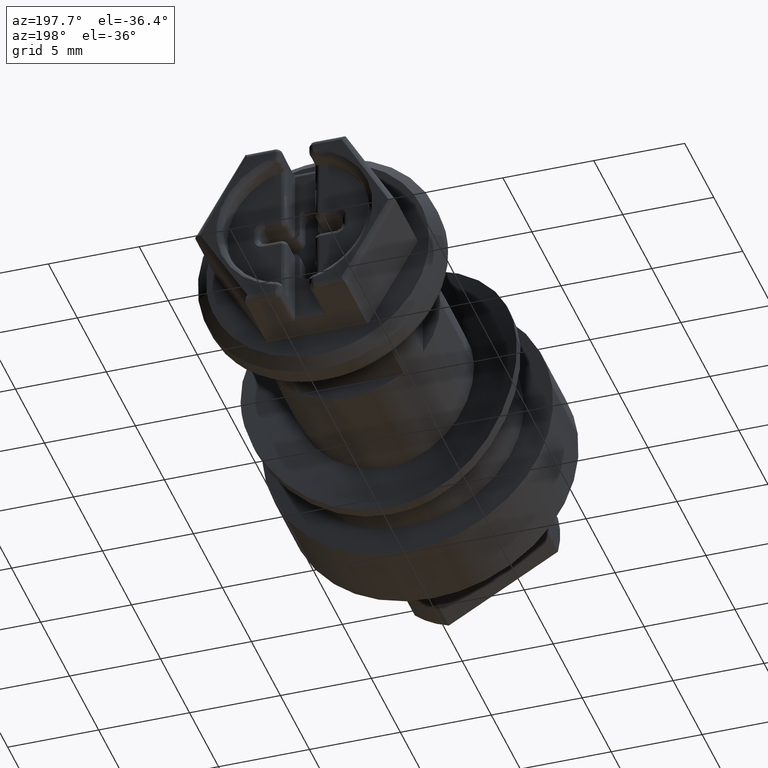
[diagram: clean part render]
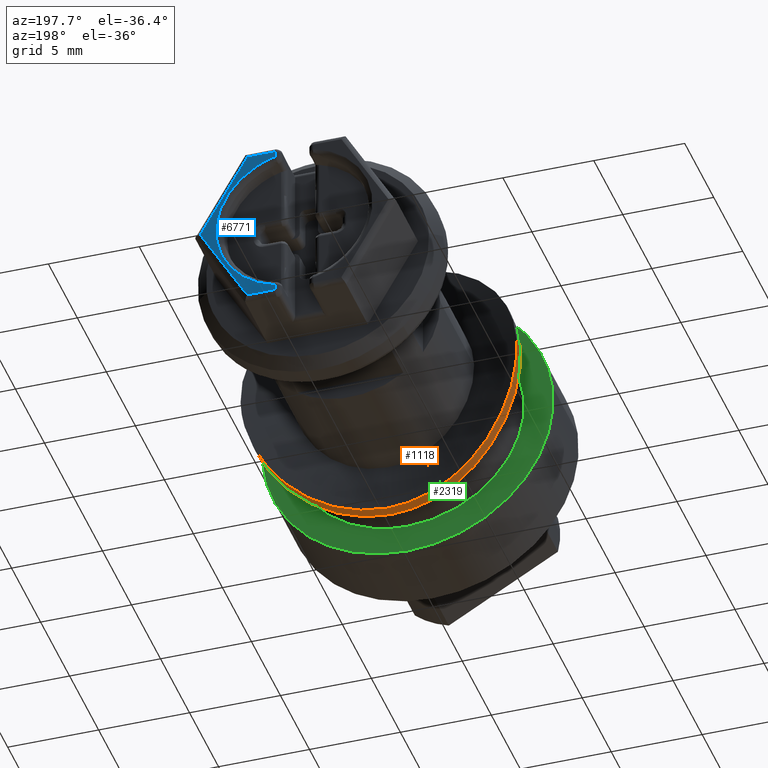
[diagram: same view with three faces highlighted in distinct colors, each labeled with its STEP entity id]
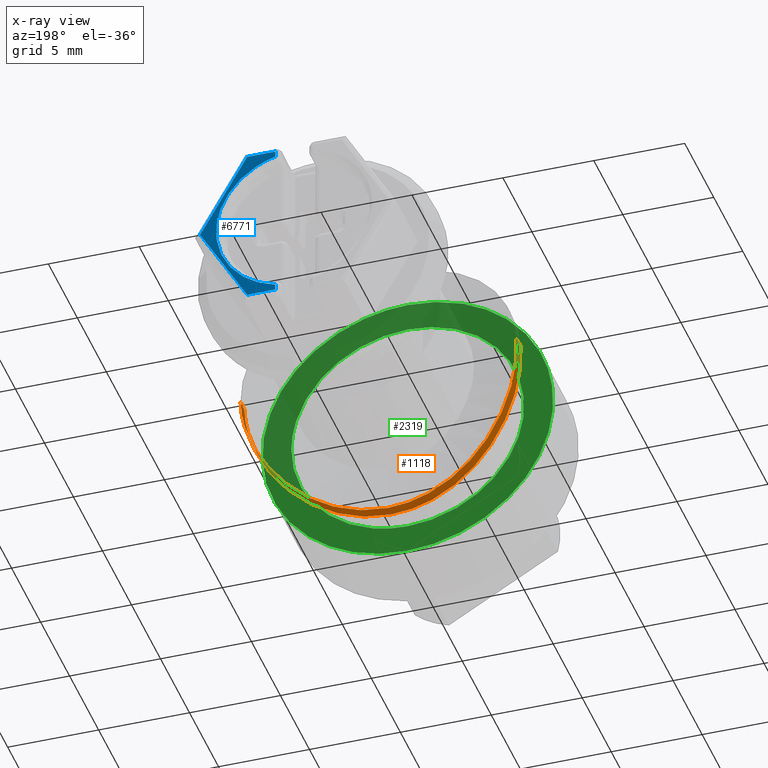
[diagram: x-ray of the same camera — body ghosted, the three highlighted faces saturated]
A machine part, auxiliary view with three faces highlighted in distinct colors.
The next image is the same camera in x-ray (body ghosted, the three faces saturated) — at least one of them is partly hidden behind the body in this view.
Their STEP definitions:

[orange] entity #1118 — the highlighted face is a freeform B-spline surface patch.
#720=CARTESIAN_POINT('',(7.598279726779529,8.745566137067797,-0.161991713038660));
#721=VERTEX_POINT('',#720);
#769=CARTESIAN_POINT('',(7.598279503509403,9.399239079622946,-0.161991708320209));
#770=VERTEX_POINT('',#769);
#771=CARTESIAN_POINT('',(7.598279503509403,9.399239079622946,-0.161991708320209));
#772=CARTESIAN_POINT('',(7.598279726779529,8.745566137067797,-0.161991713038660));
#773=QUASI_UNIFORM_CURVE('',1,(#771,#772),.UNSPECIFIED.,.F.,.U.);
#774=EDGE_CURVE('',#770,#721,#773,.T.);
#826=CARTESIAN_POINT('',(-7.576573139932421,9.389697137328517,0.596289238032107));
#827=VERTEX_POINT('',#826);
#873=CARTESIAN_POINT('',(-7.576573110358713,8.736370138112154,0.596288425991713));
#874=VERTEX_POINT('',#873);
#875=CARTESIAN_POINT('',(-7.576573139932421,9.389697137328517,0.596289238032107));
#876=CARTESIAN_POINT('',(-7.576573110358713,8.736370138112154,0.596288425991713));
#877=QUASI_UNIFORM_CURVE('',1,(#875,#876),.UNSPECIFIED.,.F.,.U.);
#878=EDGE_CURVE('',#827,#874,#877,.T.);
#924=CARTESIAN_POINT('',(-7.576571736371769,9.455000009023804,0.596289127531621));
#925=CARTESIAN_POINT('',(-8.172860863903392,9.455000009023804,-6.980282608840150));
#926=CARTESIAN_POINT('',(-0.596289127531621,9.455000009023804,-7.576571736371769));
#927=CARTESIAN_POINT('',(6.980282608840150,9.455000009023804,-8.172860863903392));
#928=CARTESIAN_POINT('',(7.576571736371769,9.455000009023804,-0.596289127531621));
#929=CARTESIAN_POINT('',(7.593637275018588,9.455000009023806,-0.379450899552038));
#930=CARTESIAN_POINT('',(7.598273404417761,9.455000009023806,-0.161991579156646));
#931=CARTESIAN_POINT('',(-7.576571736371769,7.143626074876239,0.596289127531621));
#932=CARTESIAN_POINT('',(-8.172860863903392,7.143626074876239,-6.980282608840150));
#933=CARTESIAN_POINT('',(-0.596289127531621,7.143626074876239,-7.576571736371769));
#934=CARTESIAN_POINT('',(6.980282608840150,7.143626074876239,-8.172860863903392));
#935=CARTESIAN_POINT('',(7.576571736371769,7.143626074876239,-0.596289127531621));
#936=CARTESIAN_POINT('',(7.593637275018588,7.143626074876239,-0.379450899552038));
#937=CARTESIAN_POINT('',(7.598273404417761,7.143626074876239,-0.161991579156646));
#945=(BOUNDED_SURFACE()B_SPLINE_SURFACE(2,1,((#924,#931),(#925,#932),(#926,#933),(#927,#934),(#928,#935),(#929,#936),(#930,#937)),.UNSPECIFIED.,.F.,.F.,.U.)B_SPLINE_SURFACE_WITH_KNOTS((3,2,2,3),(2,2),(0.0,12.592092296142081,25.184184592284169,25.687868284129848),(0.0,2.311373934147568),.UNSPECIFIED.)GEOMETRIC_REPRESENTATION_ITEM()RATIONAL_B_SPLINE_SURFACE(((1.0,1.0),(0.707106781186548,0.707106781186548),(1.0,1.0),(0.707106781186548,0.707106781186548),(1.0,1.0),(0.988284271247462,0.988284271247462),(0.977505800795127,0.977505800795127)))REPRESENTATION_ITEM('')SURFACE());
#946=CARTESIAN_POINT('',(-5.421011E-016,7.200001048879838,-7.599999999999999));
#947=VERTEX_POINT('',#946);
#948=CARTESIAN_POINT('',(-5.421011E-016,7.200001048879838,-7.599999999999999));
#949=CARTESIAN_POINT('',(0.507562792980920,7.200001053618528,-7.599999995527434));
#950=CARTESIAN_POINT('',(1.005690644128106,7.219822311903142,-7.549672592199582));
#951=CARTESIAN_POINT('',(1.739523220442844,7.276391505936621,-7.402452203675661));
#952=CARTESIAN_POINT('',(1.981891841460653,7.299729406984786,-7.341330777355925));
#953=CARTESIAN_POINT('',(2.342043325224849,7.341144747626165,-7.231223036701850));
#954=CARTESIAN_POINT('',(2.461808327251731,7.356060169779084,-7.191329173148732));
#955=CARTESIAN_POINT('',(2.697692414043292,7.387625556726670,-7.106206429619004));
#956=CARTESIAN_POINT('',(2.814045911413158,7.404296939927348,-7.060921858213860));
#957=CARTESIAN_POINT('',(3.388092279897297,7.491736148102098,-6.821180389647009));
#958=CARTESIAN_POINT('',(3.822845392854107,7.574732831114155,-6.587188214052991));
#959=CARTESIAN_POINT('',(4.336872753782051,7.689380958503142,-6.242342428820511));
#960=CARTESIAN_POINT('',(4.438193724772064,7.712856100743386,-6.170729291462400));
#961=CARTESIAN_POINT('',(4.637840590938308,7.760759262960617,-6.022117219146625));
#962=CARTESIAN_POINT('',(4.735510937682762,7.785030500420239,-5.945601440246731));
#963=CARTESIAN_POINT('',(5.021663789932949,7.858403015368845,-5.709985015490833));
#964=CARTESIAN_POINT('',(5.203564715255157,7.908124948832113,-5.544639955249442));
#965=CARTESIAN_POINT('',(5.550222643672269,8.007843715546004,-5.197609179019625));
#966=CARTESIAN_POINT('',(5.714978748159497,8.057843231072695,-5.015923347858263));
#967=CARTESIAN_POINT('',(5.949276501155950,8.132029042206243,-4.730876403366525));
#968=CARTESIAN_POINT('',(6.025232083510953,8.156621621361655,-4.633770177490973));
#969=CARTESIAN_POINT('',(6.172806580248619,8.205355187224027,-4.435279440745481));
#970=CARTESIAN_POINT('',(6.244570238035245,8.229546123985829,-4.333676543424968));
#971=CARTESIAN_POINT('',(6.590629346155966,8.348314411315702,-3.817187202853141));
#972=CARTESIAN_POINT('',(6.823590502628749,8.435098096080759,-3.382712346516282));
#973=CARTESIAN_POINT('',(7.109032228365530,8.545457089138010,-2.698636089818739));
#974=CARTESIAN_POINT('',(7.193427320255315,8.578938965084010,-2.465177652032475));
#975=CARTESIAN_POINT('',(7.303326756933714,8.623203850514001,-2.106414530875870));
#976=CARTESIAN_POINT('',(7.337218144482226,8.636983971791933,-1.985210441508929));
#977=CARTESIAN_POINT('',(7.399056945376273,8.662296681109464,-1.740627588183383));
#978=CARTESIAN_POINT('',(7.426817932365287,8.673752190321043,-1.618025304048101));
#979=CARTESIAN_POINT('',(7.539854427613093,8.720634665317258,-1.054663234894558));
#980=CARTESIAN_POINT('',(7.588786327237635,8.741506021634478,-0.610300375813690));
#981=CARTESIAN_POINT('',(7.598279726779529,8.745566137067797,-0.161991713038660));
#982=B_SPLINE_CURVE_WITH_KNOTS('',3,(#948,#949,#950,#951,#952,#953,#954,#955,#956,#957,#958,#959,#960,#961,#962,#963,#964,#965,#966,#967,#968,#969,#970,#971,#972,#973,#974,#975,#976,#977,#978,#979,#980,#981),.UNSPECIFIED.,.F.,.U.,(4,2,2,2,2,2,2,2,2,2,2,2,2,2,2,2,4),(0.0,0.031250000000000,0.046875000000000,0.054687500000000,0.062500000000000,0.093750000000000,0.101562500000001,0.109375000000001,0.125000000000001,0.140625000000001,0.148437500000001,0.156250000000001,0.187500000000001,0.203125000000001,0.210937500000001,0.218750000000001,0.246746620324587),.UNSPECIFIED.);
#983=EDGE_CURVE('',#947,#721,#982,.T.);
#984=ORIENTED_EDGE('',*,*,#983,.F.);
#985=CARTESIAN_POINT('',(-7.576573110358713,8.736370138112154,0.596288425991713));
#986=CARTESIAN_POINT('',(-7.592349828783686,8.743040479106639,0.395890636713040));
#987=CARTESIAN_POINT('',(-7.600084680181558,8.746333871529293,0.196030823131867));
#988=CARTESIAN_POINT('',(-7.599780214121746,8.746204705830763,-0.504344960382441));
#989=CARTESIAN_POINT('',(-7.550503934469561,8.725045606477613,-1.002092325823915));
#990=CARTESIAN_POINT('',(-7.426377432388475,8.673565983065634,-1.620122543389873));
#991=CARTESIAN_POINT('',(-7.398340941524646,8.661998385054906,-1.743658198519812));
#992=CARTESIAN_POINT('',(-7.336615654143218,8.636734885761101,-1.987426455279516));
#993=CARTESIAN_POINT('',(-7.302864556523808,8.623012985146540,-2.108016234497288));
#994=CARTESIAN_POINT('',(-7.193128149422102,8.578816811837815,-2.466010006899877));
#995=CARTESIAN_POINT('',(-7.108681950672738,8.545313764472624,-2.699647385118209));
#996=CARTESIAN_POINT('',(-6.917618671844841,8.471452992747182,-3.157215260304567));
#997=CARTESIAN_POINT('',(-6.811001481878515,8.431093819942131,-3.381145495872916));
#998=CARTESIAN_POINT('',(-6.634215820101759,8.366301135362871,-3.709803804388992));
#999=CARTESIAN_POINT('',(-6.572299480385723,8.343933848153771,-3.818424659792699));
#1000=CARTESIAN_POINT('',(-6.443714194321151,8.298277359493186,-4.031629364180208));
#1001=CARTESIAN_POINT('',(-6.377083172071719,8.274999574687396,-4.136190804495223));
#1002=CARTESIAN_POINT('',(-6.032443212758188,8.156836455141011,-4.649085630768418));
#1003=CARTESIAN_POINT('',(-5.720353497577806,8.056671730096525,-5.028000743751072));
#1004=CARTESIAN_POINT('',(-5.284217606008151,7.931351880195172,-5.463720478980001));
#1005=CARTESIAN_POINT('',(-5.194665887570742,7.906280314477384,-5.548948502140038));
#1006=CARTESIAN_POINT('',(-5.010803137212752,7.856292780515890,-5.715525835182908));
#1007=CARTESIAN_POINT('',(-4.916497474359396,7.831383867423331,-5.796841679059109));
#1008=CARTESIAN_POINT('',(-4.629387728958593,7.757930174035581,-6.032417995999167));
#1009=CARTESIAN_POINT('',(-4.431435157506474,7.710391881171822,-6.179231925628193));
#1010=CARTESIAN_POINT('',(-4.022512043231661,7.619346682466111,-6.452900307905727));
#1011=CARTESIAN_POINT('',(-3.811541427520021,7.575837277676405,-6.579753801682360));
#1012=CARTESIAN_POINT('',(-3.376260264017674,7.493998489552925,-6.813360067211262));
#1013=CARTESIAN_POINT('',(-3.151951744292813,7.455666439760442,-6.920115263630779));
#1014=CARTESIAN_POINT('',(-2.804927100745486,7.402959881093985,-7.064565243677973));
#1015=CARTESIAN_POINT('',(-2.687401051148230,7.386187257869129,-7.110101719450625));
#1016=CARTESIAN_POINT('',(-2.451772212231178,7.354782543123200,-7.194753928490231));
#1017=CARTESIAN_POINT('',(-2.333304294764105,7.340092144659129,-7.234030318062965));
#1018=CARTESIAN_POINT('',(-1.975962053964091,7.299146152866129,-7.342859812329128));
#1019=CARTESIAN_POINT('',(-1.735153466143624,7.276014884376396,-7.403435100718915));
#1020=CARTESIAN_POINT('',(-1.248387093961978,7.238570820428883,-7.500875860783884));
#1021=CARTESIAN_POINT('',(-1.002429443227518,7.224256945863895,-7.537741625464584));
#1022=CARTESIAN_POINT('',(-0.505239197696104,7.204972665377206,-7.587301693772382));
#1023=CARTESIAN_POINT('',(-0.253781482330762,7.200001012002802,-7.600000002704404));
#1024=CARTESIAN_POINT('',(-5.421011E-016,7.200001048879838,-7.599999999999999));
#1025=B_SPLINE_CURVE_WITH_KNOTS('',3,(#985,#986,#987,#988,#989,#990,#991,#992,#993,#994,#995,#996,#997,#998,#999,#1000,#1001,#1002,#1003,#1004,#1005,#1006,#1007,#1008,#1009,#1010,#1011,#1012,#1013,#1014,#1015,#1016,#1017,#1018,#1019,#1020,#1021,#1022,#1023,#1024),.UNSPECIFIED.,.F.,.U.,(4,2,2,2,2,2,2,2,2,2,2,2,2,2,2,2,2,2,2,4),(0.737567398715673,0.750000000000000,0.781250000000000,0.789062500000000,0.796875000000000,0.812500000000000,0.828125000000000,0.835937500000000,0.843750000000000,0.875000000000000,0.882812500000000,0.890625000000000,0.906250000000000,0.921875000000000,0.937500000000000,0.945312500000000,0.953125000000000,0.968750000000000,0.984375000000000,1.0),.UNSPECIFIED.);
#1026=EDGE_CURVE('',#874,#947,#1025,.T.);
#1027=ORIENTED_EDGE('',*,*,#1026,.F.);
#1028=ORIENTED_EDGE('',*,*,#878,.F.);
#1029=CARTESIAN_POINT('',(-6.776264E-017,7.800001503590850,-7.600000000000000));
#1030=VERTEX_POINT('',#1029);
#1031=CARTESIAN_POINT('',(-7.576573139932421,9.389697137328517,0.596289238032107));
#1032=CARTESIAN_POINT('',(-7.592119310458546,9.396518741662765,0.398819643456612));
#1033=CARTESIAN_POINT('',(-7.599861117055821,9.399939779562347,0.201809030428016));
#1034=CARTESIAN_POINT('',(-7.600342803108004,9.400151972645981,-0.495815490820930));
#1035=CARTESIAN_POINT('',(-7.551624363765730,9.378432480183751,-0.993981637801050));
#1036=CARTESIAN_POINT('',(-7.440295524033910,9.330512373999721,-1.551118994942667));
#1037=CARTESIAN_POINT('',(-7.427113086932581,9.324853891340645,-1.613058217769481));
#1038=CARTESIAN_POINT('',(-7.399300797083928,9.312957456419408,-1.736177877469232));
#1039=CARTESIAN_POINT('',(-7.355384056603687,9.294232014199290,-1.919884144065469));
#1040=CARTESIAN_POINT('',(-7.304965443444654,9.272960338546767,-2.100720941130444));
#1041=CARTESIAN_POINT('',(-7.195635322515200,9.227269452935611,-2.458673672495814));
#1042=CARTESIAN_POINT('',(-7.111447050791763,9.192613849462981,-2.692356454993793));
#1043=CARTESIAN_POINT('',(-6.920838514038190,9.116175437115114,-3.150152054320276));
#1044=CARTESIAN_POINT('',(-6.814418342624790,9.074391181568181,-3.374264685460184));
#1045=CARTESIAN_POINT('',(-6.637851824863367,9.007286148498062,-3.703296427316448));
#1046=CARTESIAN_POINT('',(-6.576025831247052,8.984128670766630,-3.811996176989311));
#1047=CARTESIAN_POINT('',(-6.447885575333982,8.936956881210543,-4.024947557019867));
#1048=CARTESIAN_POINT('',(-6.381472042826778,8.912903376332592,-4.129410864015290));
#1049=CARTESIAN_POINT('',(-6.037879365729407,8.790784606537718,-4.641948319761884));
#1050=CARTESIAN_POINT('',(-5.726503624627752,8.687209117087958,-5.021001802756355));
#1051=CARTESIAN_POINT('',(-5.290836083279356,8.557521549677437,-5.457311988154266));
#1052=CARTESIAN_POINT('',(-5.201356461430533,8.531571235737568,-5.542679069843524));
#1053=CARTESIAN_POINT('',(-5.017585983620196,8.479821135556449,-5.709573691935316));
#1054=CARTESIAN_POINT('',(-4.923702890365229,8.454139291250385,-5.790717229561376));
#1055=CARTESIAN_POINT('',(-4.637493293476772,8.378298537465540,-6.026167702585739));
#1056=CARTESIAN_POINT('',(-4.440051211034342,8.329185132831361,-6.173034208631707));
#1057=CARTESIAN_POINT('',(-4.031917569284617,8.235061738004209,-6.447018510703364));
#1058=CARTESIAN_POINT('',(-3.821226175871343,8.190049123717621,-6.574135666218236));
#1059=CARTESIAN_POINT('',(-3.386211093799002,8.105320744530228,-6.808421578485626));
#1060=CARTESIAN_POINT('',(-3.161889767617476,8.065602121927682,-6.915593122934520));
#1061=CARTESIAN_POINT('',(-2.872454999582728,8.020054092734695,-7.036542969495076));
#1062=CARTESIAN_POINT('',(-2.814105141895055,8.011149405011956,-7.060081059794281));
#1063=CARTESIAN_POINT('',(-2.697203948013235,7.993874202559475,-7.105562842832193));
#1064=CARTESIAN_POINT('',(-2.521286356469623,7.968720276806704,-7.171506096391590));
#1065=CARTESIAN_POINT('',(-2.343682255257136,7.945882887156781,-7.230676248518392));
#1066=CARTESIAN_POINT('',(-1.986239668684314,7.903403389522421,-7.340092426618209));
#1067=CARTESIAN_POINT('',(-1.744970369519532,7.879342835707678,-7.401159693226423));
#1068=CARTESIAN_POINT('',(-1.256438083270398,7.840325510106038,-7.499563318581223));
#1069=CARTESIAN_POINT('',(-1.009175517905832,7.825367397699423,-7.536901073768363));
#1070=CARTESIAN_POINT('',(-0.633630117908440,7.810237460797827,-7.574585212656873));
#1071=CARTESIAN_POINT('',(-0.507671749070470,7.806412580932194,-7.584087097845815));
#1072=CARTESIAN_POINT('',(-0.254158527809325,7.801288620256175,-7.596809275098681));
#1073=CARTESIAN_POINT('',(-0.126952695503242,7.800001502367876,-7.600000000836154));
#1074=CARTESIAN_POINT('',(-6.776264E-017,7.800001503590850,-7.600000000000000));
#1075=B_SPLINE_CURVE_WITH_KNOTS('',3,(#1031,#1032,#1033,#1034,#1035,#1036,#1037,#1038,#1039,#1040,#1041,#1042,#1043,#1044,#1045,#1046,#1047,#1048,#1049,#1050,#1051,#1052,#1053,#1054,#1055,#1056,#1057,#1058,#1059,#1060,#1061,#1062,#1063,#1064,#1065,#1066,#1067,#1068,#1069,#1070,#1071,#1072,#1073,#1074),.UNSPECIFIED.,.F.,.U.,(4,2,2,2,1,2,2,2,2,2,2,2,2,2,2,2,2,1,2,2,2,2,4),(0.737740901436730,0.749999999999999,0.781249999999999,0.785156249999999,0.789062499999999,0.796874999999999,0.812500000000000,0.828125000000000,0.835937500000000,0.843750000000000,0.875000000000000,0.882812500000000,0.890625000000000,0.906250000000000,0.921875000000000,0.937500000000000,0.941406250000000,0.945312500000000,0.953125000000000,0.968750000000000,0.984375000000000,0.992187500000000,1.0),.UNSPECIFIED.);
#1076=EDGE_CURVE('',#827,#1030,#1075,.T.);
#1077=ORIENTED_EDGE('',*,*,#1076,.T.);
#1078=CARTESIAN_POINT('',(-6.776264E-017,7.800001503590850,-7.600000000000000));
#1079=CARTESIAN_POINT('',(0.507810620948846,7.800001508482759,-7.599999995689236));
#1080=CARTESIAN_POINT('',(1.006123133269097,7.820471488057640,-7.549624442058501));
#1081=CARTESIAN_POINT('',(1.740155283926567,7.878890606377147,-7.402306067268920));
#1082=CARTESIAN_POINT('',(1.982577465553473,7.902991970946297,-7.341147418181427));
#1083=CARTESIAN_POINT('',(2.342791701835321,7.945765490656896,-7.230981070568157));
#1084=CARTESIAN_POINT('',(2.462557121494208,7.961168501416162,-7.191072387928404));
#1085=CARTESIAN_POINT('',(2.698387046704004,7.993759295917333,-7.105942282566410));
#1086=CARTESIAN_POINT('',(2.814709507575834,8.010972400139803,-7.060656804266078));
#1087=CARTESIAN_POINT('',(3.388585000240859,8.101255562680725,-6.820926216815478));
#1088=CARTESIAN_POINT('',(3.823151661587732,8.186959260019144,-6.586993787630316));
#1089=CARTESIAN_POINT('',(4.336941773925829,8.305396131455611,-6.242293434883288));
#1090=CARTESIAN_POINT('',(4.438215065577309,8.329649320001487,-6.170712813096455));
#1091=CARTESIAN_POINT('',(4.637767531090927,8.379145798093822,-6.022172334242450));
#1092=CARTESIAN_POINT('',(4.735275441447720,8.404197275062920,-5.945786364663853));
#1093=CARTESIAN_POINT('',(5.021139126780850,8.479984462442102,-5.710435184658559));
#1094=CARTESIAN_POINT('',(5.202876119683662,8.531358702094122,-5.545276223648632));
#1095=CARTESIAN_POINT('',(5.549267593685133,8.634431485060652,-5.198618304388755));
#1096=CARTESIAN_POINT('',(5.713921206284263,8.686132827989738,-5.017119317412676));
#1097=CARTESIAN_POINT('',(5.948113569901523,8.762878467315462,-4.732336294653975));
#1098=CARTESIAN_POINT('',(6.024042072438964,8.788325457705907,-4.635315274145574));
#1099=CARTESIAN_POINT('',(6.171578723713140,8.838764365477500,-4.436985893497762));
#1100=CARTESIAN_POINT('',(6.243352752533895,8.863815660849252,-4.335426119800658));
#1101=CARTESIAN_POINT('',(6.589136681143585,8.986708062676291,-3.819683019907687));
#1102=CARTESIAN_POINT('',(6.822096903140161,9.076625392091767,-3.385695293947844));
#1103=CARTESIAN_POINT('',(7.107742474749058,9.191107529592427,-2.702022771152220));
#1104=CARTESIAN_POINT('',(7.192239682979657,9.225866749537655,-2.468644004625449));
#1105=CARTESIAN_POINT('',(7.302323550380189,9.271851223955965,-2.109891269380040));
#1106=CARTESIAN_POINT('',(7.336294295293209,9.286177844106806,-1.988620871551227));
#1107=CARTESIAN_POINT('',(7.398234941262038,9.312478499301722,-1.744117050243839));
#1108=CARTESIAN_POINT('',(7.426050510878293,9.324386101143311,-1.621544144465452));
#1109=CARTESIAN_POINT('',(7.539567462859712,9.373233440472747,-1.057177023910253));
#1110=CARTESIAN_POINT('',(7.588757003695524,9.395012330471971,-0.611638554059881));
#1111=CARTESIAN_POINT('',(7.598279503509403,9.399239079622946,-0.161991708320209));
#1112=B_SPLINE_CURVE_WITH_KNOTS('',3,(#1078,#1079,#1080,#1081,#1082,#1083,#1084,#1085,#1086,#1087,#1088,#1089,#1090,#1091,#1092,#1093,#1094,#1095,#1096,#1097,#1098,#1099,#1100,#1101,#1102,#1103,#1104,#1105,#1106,#1107,#1108,#1109,#1110,#1111),.UNSPECIFIED.,.F.,.U.,(4,2,2,2,2,2,2,2,2,2,2,2,2,2,2,2,4),(0.0,0.031250000000000,0.046875000000000,0.054687500000000,0.062500000000000,0.093750000000000,0.101562500000000,0.109375000000000,0.125000000000000,0.140625000000000,0.148437500000000,0.156250000000000,0.187500000000000,0.203125000000000,0.210937500000000,0.218750000000000,0.246816080053966),.UNSPECIFIED.);
#1113=EDGE_CURVE('',#1030,#770,#1112,.T.);
#1114=ORIENTED_EDGE('',*,*,#1113,.T.);
#1115=ORIENTED_EDGE('',*,*,#774,.T.);
#1116=EDGE_LOOP('',(#984,#1027,#1028,#1077,#1114,#1115));
#1117=FACE_OUTER_BOUND('',#1116,.T.);
#1118=ADVANCED_FACE('',(#1117),#945,.T.);

[blue] entity #6771 — the highlighted face is a freeform B-spline surface patch.
#3196=CARTESIAN_POINT('',(1.050000035623202,23.950001328298899,4.169832121943434));
#3197=VERTEX_POINT('',#3196);
#3293=CARTESIAN_POINT('',(1.050000035623202,23.950001328298899,4.484790583174300));
#3294=VERTEX_POINT('',#3293);
#3308=CARTESIAN_POINT('',(1.050000035623202,23.950001328298899,4.169832121943434));
#3309=CARTESIAN_POINT('',(1.050000035623202,23.950001328298899,4.484790583174300));
#3310=QUASI_UNIFORM_CURVE('',1,(#3308,#3309),.UNSPECIFIED.,.F.,.U.);
#3311=EDGE_CURVE('',#3197,#3294,#3310,.T.);
#3345=CARTESIAN_POINT('',(1.050000035623202,23.950001328298899,-4.169832121943434));
#3346=VERTEX_POINT('',#3345);
#3378=CARTESIAN_POINT('',(1.050000035623202,23.950001328298899,-4.169832121943433));
#3379=CARTESIAN_POINT('',(4.300000000000000,23.950001328298896,-3.351453832704158));
#3380=CARTESIAN_POINT('',(4.300000000000000,23.950001328298899,0.0));
#3381=CARTESIAN_POINT('',(4.300000000000000,23.950001328298896,3.351453832704160));
#3382=CARTESIAN_POINT('',(1.050000035623201,23.950001328298899,4.169832121943434));
#3390=(BOUNDED_CURVE()B_SPLINE_CURVE(2,(#3378,#3379,#3380,#3381,#3382),.UNSPECIFIED.,.F.,.U.)B_SPLINE_CURVE_WITH_KNOTS((3,2,3),(0.0,0.500000000000000,1.0),.UNSPECIFIED.)CURVE()GEOMETRIC_REPRESENTATION_ITEM()RATIONAL_B_SPLINE_CURVE((1.0,0.788728741328758,1.0,0.788728741328758,1.0))REPRESENTATION_ITEM(''));
#3391=EDGE_CURVE('',#3346,#3197,#3390,.T.);
#3680=CARTESIAN_POINT('',(2.589295050454995,23.950001328298899,4.484790583174300));
#3681=VERTEX_POINT('',#3680);
#3695=CARTESIAN_POINT('',(1.050000035623202,23.950001328298899,4.484790583174300));
#3696=CARTESIAN_POINT('',(2.589295050454995,23.950001328298899,4.484790583174300));
#3697=QUASI_UNIFORM_CURVE('',1,(#3695,#3696),.UNSPECIFIED.,.F.,.U.);
#3698=EDGE_CURVE('',#3294,#3681,#3697,.T.);
#3723=CARTESIAN_POINT('',(1.050000035623202,23.950001328298899,-4.484790583174330));
#3724=VERTEX_POINT('',#3723);
#3746=CARTESIAN_POINT('',(1.050000035623202,23.950001328298899,-4.484790583174330));
#3747=CARTESIAN_POINT('',(1.050000035623202,23.950001328298899,-4.169832121943434));
#3748=QUASI_UNIFORM_CURVE('',1,(#3746,#3747),.UNSPECIFIED.,.F.,.U.);
#3749=EDGE_CURVE('',#3724,#3346,#3748,.T.);
#3918=CARTESIAN_POINT('',(5.178590100910000,23.950001328298899,-2.195566E-013));
#3919=VERTEX_POINT('',#3918);
#3933=CARTESIAN_POINT('',(2.589295050454995,23.950001328298899,4.484790583174300));
#3934=CARTESIAN_POINT('',(5.178590100910000,23.950001328298899,-2.195566E-013));
#3935=QUASI_UNIFORM_CURVE('',1,(#3933,#3934),.UNSPECIFIED.,.F.,.U.);
#3936=EDGE_CURVE('',#3681,#3919,#3935,.T.);
#4149=CARTESIAN_POINT('',(2.589295050455195,23.950001328298899,-4.484790583174330));
#4150=VERTEX_POINT('',#4149);
#4164=CARTESIAN_POINT('',(5.178590100910000,23.950001328298899,-2.195566E-013));
#4165=CARTESIAN_POINT('',(2.589295050455195,23.950001328298899,-4.484790583174330));
#4166=QUASI_UNIFORM_CURVE('',1,(#4164,#4165),.UNSPECIFIED.,.F.,.U.);
#4167=EDGE_CURVE('',#3919,#4150,#4166,.T.);
#4193=CARTESIAN_POINT('',(2.589295050455195,23.950001328298899,-4.484790583174330));
#4194=CARTESIAN_POINT('',(1.050000035623202,23.950001328298899,-4.484790583174330));
#4195=QUASI_UNIFORM_CURVE('',1,(#4193,#4194),.UNSPECIFIED.,.F.,.U.);
#4196=EDGE_CURVE('',#4150,#3724,#4195,.T.);
#6757=CARTESIAN_POINT('',(0.843777008620385,23.950001328298899,-4.932821397648686));
#6758=CARTESIAN_POINT('',(5.384813275562704,23.950001328298899,-4.932821397648686));
#6759=CARTESIAN_POINT('',(0.843777008620385,23.950001328298899,4.932821397648655));
#6760=CARTESIAN_POINT('',(5.384813275562704,23.950001328298899,4.932821397648655));
#6761=B_SPLINE_SURFACE_WITH_KNOTS('',1,1,((#6757,#6759),(#6758,#6760)),.UNSPECIFIED.,.F.,.F.,.U.,(2,2),(2,2),(0.0,4.541036266942319),(0.0,9.865642795297340),.UNSPECIFIED.);
#6762=ORIENTED_EDGE('',*,*,#4167,.T.);
#6763=ORIENTED_EDGE('',*,*,#4196,.T.);
#6764=ORIENTED_EDGE('',*,*,#3749,.T.);
#6765=ORIENTED_EDGE('',*,*,#3391,.T.);
#6766=ORIENTED_EDGE('',*,*,#3311,.T.);
#6767=ORIENTED_EDGE('',*,*,#3698,.T.);
#6768=ORIENTED_EDGE('',*,*,#3936,.T.);
#6769=EDGE_LOOP('',(#6762,#6763,#6764,#6765,#6766,#6767,#6768));
#6770=FACE_OUTER_BOUND('',#6769,.T.);
#6771=ADVANCED_FACE('',(#6770),#6761,.F.);

[green] entity #2319 — the highlighted face is a freeform B-spline surface patch.
#382=CARTESIAN_POINT('',(6.399756615722939,4.400000208988815,0.055845702265241));
#383=VERTEX_POINT('',#382);
#389=CARTESIAN_POINT('',(0.0,4.400000208988815,-6.400000255958999));
#390=VERTEX_POINT('',#389);
#391=CARTESIAN_POINT('',(6.399756615722939,4.400000208988815,0.055845702265241));
#392=CARTESIAN_POINT('',(6.400000271967201,4.400000208988815,0.027923390676123));
#393=CARTESIAN_POINT('',(6.400000271967200,4.400000208988815,0.000000016008201));
#394=CARTESIAN_POINT('',(6.400000271967200,4.400000208988816,-6.400000255958998));
#395=CARTESIAN_POINT('',(0.0,4.400000208988815,-6.400000255958999));
#403=(BOUNDED_CURVE()B_SPLINE_CURVE(2,(#391,#392,#393,#394,#395),.UNSPECIFIED.,.F.,.U.)B_SPLINE_CURVE_WITH_KNOTS((3,2,3),(0.248460219702711,0.250000000000000,0.500000000000000),.UNSPECIFIED.)CURVE()GEOMETRIC_REPRESENTATION_ITEM()RATIONAL_B_SPLINE_CURVE((0.996414292015710,0.998196035169845,1.0,0.707106781186548,1.0))REPRESENTATION_ITEM(''));
#404=EDGE_CURVE('',#383,#390,#403,.T.);
#406=CARTESIAN_POINT('',(-6.350505149259178,4.400000208988815,-0.794410350447820));
#407=VERTEX_POINT('',#406);
#408=CARTESIAN_POINT('',(0.0,4.400000208988815,-6.400000255958999));
#409=CARTESIAN_POINT('',(-5.649279242605322,4.400000208988815,-6.400000255958998));
#410=CARTESIAN_POINT('',(-6.350505149259178,4.400000208988815,-0.794410350447820));
#418=(BOUNDED_CURVE()B_SPLINE_CURVE(2,(#408,#409,#410),.UNSPECIFIED.,.F.,.U.)B_SPLINE_CURVE_WITH_KNOTS((3,3),(0.500000000000000,0.728526306865605),.UNSPECIFIED.)CURVE()GEOMETRIC_REPRESENTATION_ITEM()RATIONAL_B_SPLINE_CURVE((1.0,0.732264777594328,0.954005887942334))REPRESENTATION_ITEM(''));
#419=EDGE_CURVE('',#390,#407,#418,.T.);
#469=CARTESIAN_POINT('',(0.0,4.400000208988815,6.400000287975401));
#470=VERTEX_POINT('',#469);
#471=CARTESIAN_POINT('',(-6.350505149259178,4.400000208988815,-0.794410350447820));
#472=CARTESIAN_POINT('',(-6.400000271967200,4.400000208988815,-0.398747044866000));
#473=CARTESIAN_POINT('',(-6.400000271967200,4.400000208988815,0.000000016008201));
#474=CARTESIAN_POINT('',(-6.400000271967200,4.400000208988816,6.400000287975400));
#475=CARTESIAN_POINT('',(0.0,4.400000208988815,6.400000287975401));
#483=(BOUNDED_CURVE()B_SPLINE_CURVE(2,(#471,#472,#473,#474,#475),.UNSPECIFIED.,.F.,.U.)B_SPLINE_CURVE_WITH_KNOTS((3,2,3),(0.728526306865605,0.750000000000000,1.0),.UNSPECIFIED.)CURVE()GEOMETRIC_REPRESENTATION_ITEM()RATIONAL_B_SPLINE_CURVE((0.954005887942334,0.974842003592219,1.0,0.707106781186548,1.0))REPRESENTATION_ITEM(''));
#484=EDGE_CURVE('',#407,#470,#483,.T.);
#486=CARTESIAN_POINT('',(0.0,4.400000208988815,6.400000287975401));
#487=CARTESIAN_POINT('',(6.344396125031666,4.400000208988816,6.400000287975402));
#488=CARTESIAN_POINT('',(6.399756615722939,4.400000208988815,0.055845702265241));
#496=(BOUNDED_CURVE()B_SPLINE_CURVE(2,(#486,#487,#488),.UNSPECIFIED.,.F.,.U.)B_SPLINE_CURVE_WITH_KNOTS((3,3),(0.0,0.248460219702711),.UNSPECIFIED.)CURVE()GEOMETRIC_REPRESENTATION_ITEM()RATIONAL_B_SPLINE_CURVE((1.0,0.708910746016702,0.996414292015710))REPRESENTATION_ITEM(''));
#497=EDGE_CURVE('',#470,#383,#496,.T.);
#538=CARTESIAN_POINT('',(-7.944077661814875,4.400000208988816,0.944264890083837));
#539=VERTEX_POINT('',#538);
#540=CARTESIAN_POINT('',(0.0,4.400000208988786,-8.000000379979609));
#541=VERTEX_POINT('',#540);
#542=CARTESIAN_POINT('',(-7.944077661814875,4.400000208988816,0.944264890083837));
#543=CARTESIAN_POINT('',(-8.000000379979609,4.400000208988786,0.473788415966907));
#544=CARTESIAN_POINT('',(-8.000000379979609,4.400000208988786,0.0));
#545=CARTESIAN_POINT('',(-8.000000379979610,4.400000208988785,-8.000000379979610));
#546=CARTESIAN_POINT('',(0.0,4.400000208988786,-8.000000379979609));
#554=(BOUNDED_CURVE()B_SPLINE_CURVE(2,(#542,#543,#544,#545,#546),.UNSPECIFIED.,.F.,.U.)B_SPLINE_CURVE_WITH_KNOTS((3,2,3),(0.229562665663964,0.250000000000000,0.500000000000000),.UNSPECIFIED.)CURVE()GEOMETRIC_REPRESENTATION_ITEM()RATIONAL_B_SPLINE_CURVE((0.956027130806803,0.976056173449407,1.0,0.707106781186547,1.0))REPRESENTATION_ITEM(''));
#555=EDGE_CURVE('',#539,#541,#554,.T.);
#557=CARTESIAN_POINT('',(7.985079307980459,4.400000208988836,-0.488379488571689));
#558=VERTEX_POINT('',#557);
#559=CARTESIAN_POINT('',(0.0,4.400000208988786,-8.000000379979609));
#560=CARTESIAN_POINT('',(7.525657249944733,4.400000208988787,-8.000000379979610));
#561=CARTESIAN_POINT('',(7.985079307980459,4.400000208988836,-0.488379488571689));
#569=(BOUNDED_CURVE()B_SPLINE_CURVE(2,(#559,#560,#561),.UNSPECIFIED.,.F.,.U.)B_SPLINE_CURVE_WITH_KNOTS((3,3),(0.500000000000000,0.739333153498110),.UNSPECIFIED.)CURVE()GEOMETRIC_REPRESENTATION_ITEM()RATIONAL_B_SPLINE_CURVE((1.0,0.719603769212658,0.976072451571863))REPRESENTATION_ITEM(''));
#570=EDGE_CURVE('',#541,#558,#569,.T.);
#637=CARTESIAN_POINT('',(0.0,4.400000208988786,8.000000379979609));
#638=VERTEX_POINT('',#637);
#639=CARTESIAN_POINT('',(0.0,4.400000208988786,8.000000379979609));
#640=CARTESIAN_POINT('',(-7.105404680455376,4.400000208988787,8.000000379979609));
#641=CARTESIAN_POINT('',(-7.944077661814875,4.400000208988816,0.944264890083837));
#649=(BOUNDED_CURVE()B_SPLINE_CURVE(2,(#639,#640,#641),.UNSPECIFIED.,.F.,.U.)B_SPLINE_CURVE_WITH_KNOTS((3,3),(0.0,0.229562665663964),.UNSPECIFIED.)CURVE()GEOMETRIC_REPRESENTATION_ITEM()RATIONAL_B_SPLINE_CURVE((1.0,0.731050607737140,0.956027130806803))REPRESENTATION_ITEM(''));
#650=EDGE_CURVE('',#638,#539,#649,.T.);
#684=CARTESIAN_POINT('',(7.985079307980459,4.400000208988836,-0.488379488571689));
#685=CARTESIAN_POINT('',(8.000000379979607,4.400000208988787,-0.244417680137792));
#686=CARTESIAN_POINT('',(8.000000379979609,4.400000208988786,0.0));
#687=CARTESIAN_POINT('',(8.000000379979610,4.400000208988785,8.000000379979610));
#688=CARTESIAN_POINT('',(0.0,4.400000208988786,8.000000379979609));
#696=(BOUNDED_CURVE()B_SPLINE_CURVE(2,(#684,#685,#686,#687,#688),.UNSPECIFIED.,.F.,.U.)B_SPLINE_CURVE_WITH_KNOTS((3,2,3),(0.739333153498110,0.750000000000000,1.0),.UNSPECIFIED.)CURVE()GEOMETRIC_REPRESENTATION_ITEM()RATIONAL_B_SPLINE_CURVE((0.976072451571863,0.987503011973889,1.0,0.707106781186547,1.0))REPRESENTATION_ITEM(''));
#697=EDGE_CURVE('',#558,#638,#696,.T.);
#2302=CARTESIAN_POINT('',(-8.799054883627081,4.400000208988815,8.799200029372104));
#2303=CARTESIAN_POINT('',(8.799005674030013,4.400000208988815,8.799200029372104));
#2304=CARTESIAN_POINT('',(-8.799054883627081,4.400000208988815,-8.799199600218643));
#2305=CARTESIAN_POINT('',(8.799005674030013,4.400000208988815,-8.799199600218643));
#2306=B_SPLINE_SURFACE_WITH_KNOTS('',1,1,((#2302,#2304),(#2303,#2305)),.UNSPECIFIED.,.F.,.F.,.U.,(2,2),(2,2),(0.0,17.598060557657089),(0.0,17.598399629590752),.UNSPECIFIED.);
#2307=ORIENTED_EDGE('',*,*,#697,.F.);
#2308=ORIENTED_EDGE('',*,*,#570,.F.);
#2309=ORIENTED_EDGE('',*,*,#555,.F.);
#2310=ORIENTED_EDGE('',*,*,#650,.F.);
#2311=EDGE_LOOP('',(#2307,#2308,#2309,#2310));
#2312=FACE_OUTER_BOUND('',#2311,.T.);
#2313=ORIENTED_EDGE('',*,*,#497,.F.);
#2314=ORIENTED_EDGE('',*,*,#484,.F.);
#2315=ORIENTED_EDGE('',*,*,#419,.F.);
#2316=ORIENTED_EDGE('',*,*,#404,.F.);
#2317=EDGE_LOOP('',(#2313,#2314,#2315,#2316));
#2318=FACE_BOUND('',#2317,.T.);
#2319=ADVANCED_FACE('',(#2312,#2318),#2306,.T.);